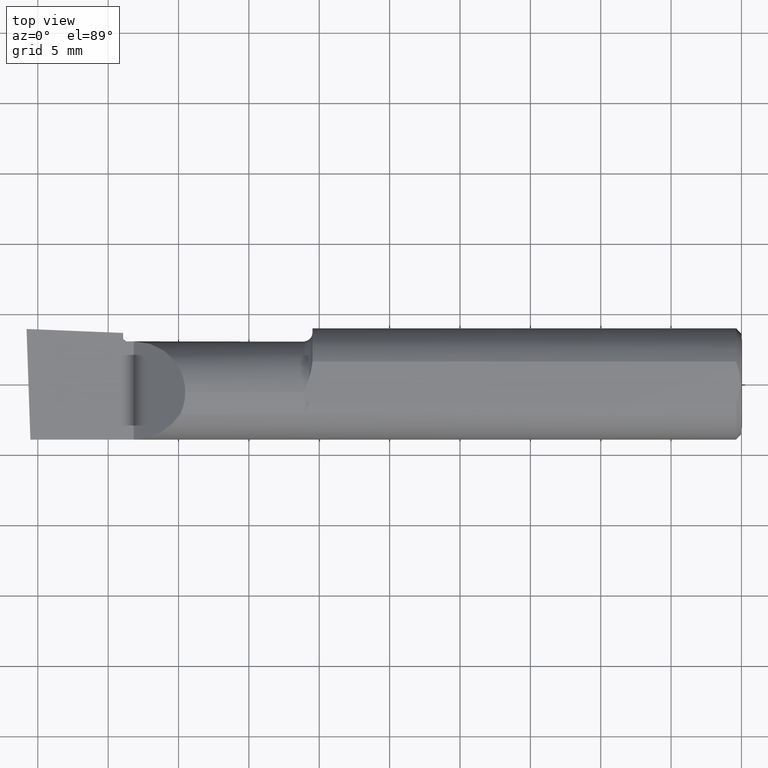
[diagram: clean part render]
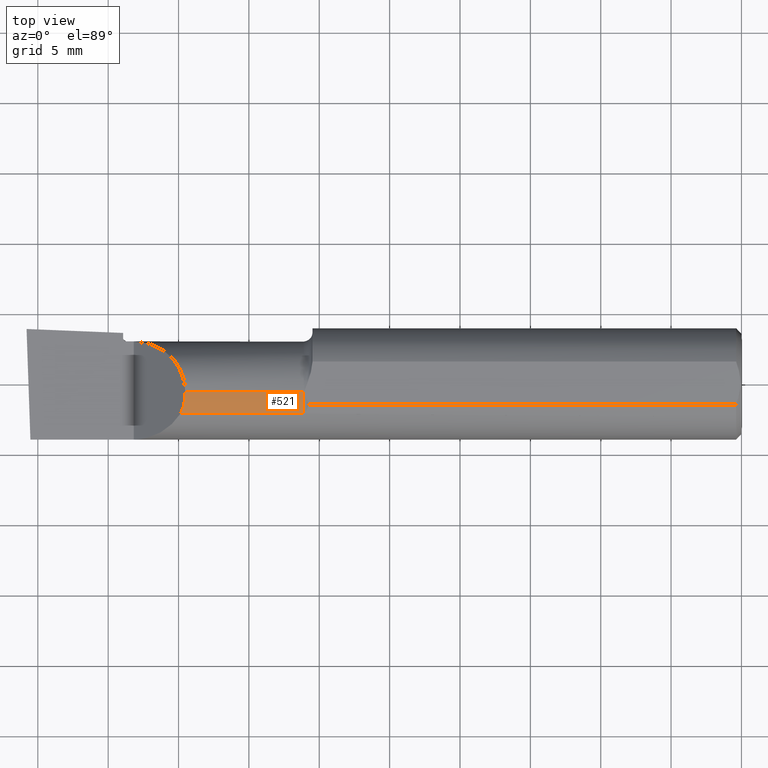
[diagram: same view with one face highlighted and labeled with its STEP entity id]
A machine part, top view. The second image highlights one B-rep face of the part: STEP entity #521.
In plain terms, the highlighted cylindrical surface (partial cylindrical patch) has radius 3.6551 mm, axis along (1, -0, -0).
Its self-contained STEP definition (entity closure, byte-faithful):
#39 = EDGE_CURVE ( 'NONE', #740, #435, #54, .T. ) ;
#54 = CIRCLE ( 'NONE', #476, 0.1439000000000000556 ) ;
#61 = DIRECTION ( 'NONE',  ( 0.000000000000000000, 0.000000000000000000, 1.000000000000000000 ) ) ;
#106 = CARTESIAN_POINT ( 'NONE',  ( -1.556100000000000483, -0.04605394310600444824, 0.1439000000000000001 ) ) ;
#153 = DIRECTION ( 'NONE',  ( -1.000000000000000000, 0.000000000000000000, 0.000000000000000000 ) ) ;
#179 = VECTOR ( 'NONE', #153, 39.37007874015748143 ) ;
#198 = CARTESIAN_POINT ( 'NONE',  ( -1.472499999999999698, -0.08569999999999981799, 0.1304711462354800622 ) ) ;
#224 = VECTOR ( 'NONE', #288, 39.37007874015748143 ) ;
#226 = CARTESIAN_POINT ( 'NONE',  ( -1.224999999999999867, -0.02500000000000000486, 0.000000000000000000 ) ) ;
#248 = AXIS2_PLACEMENT_3D ( 'NONE', #678, #735, #729 ) ;
#270 = EDGE_LOOP ( 'NONE', ( #406, #439, #391, #672 ) ) ;
#272 = VERTEX_POINT ( 'NONE', #547 ) ;
#288 = DIRECTION ( 'NONE',  ( 1.000000000000000000, -0.000000000000000000, -0.000000000000000000 ) ) ;
#292 = FACE_OUTER_BOUND ( 'NONE', #270, .T. ) ;
#328 = EDGE_CURVE ( 'NONE', #740, #272, #606, .T. ) ;
#332 = CARTESIAN_POINT ( 'NONE',  ( -1.560647864559970843, -0.06661082633900061722, 0.1393521354400298062 ) ) ;
#347 =( BOUNDED_CURVE ( )  B_SPLINE_CURVE ( 3, ( #514, #106, #332, #401 ),
 .UNSPECIFIED., .F., .F. ) 
 B_SPLINE_CURVE_WITH_KNOTS ( ( 4, 4 ),
 ( 0.000000000000000000, 0.4354524910905175905 ),
 .UNSPECIFIED. ) 
 CURVE ( )  GEOMETRIC_REPRESENTATION_ITEM ( )  RATIONAL_B_SPLINE_CURVE ( ( 1.000000000000000000, 0.9842607512044772022, 0.9842607512044772022, 1.000000000000000000 ) ) 
 REPRESENTATION_ITEM ( '' )  );
#368 = CARTESIAN_POINT ( 'NONE',  ( -1.224999999999999867, -0.08569999999999945717, 0.1304711462354803397 ) ) ;
#391 = ORIENTED_EDGE ( 'NONE', *, *, #328, .F. ) ;
#399 = LINE ( 'NONE', #575, #224 ) ;
#401 = CARTESIAN_POINT ( 'NONE',  ( -1.569528853764517340, -0.08569999999999478035, 0.1304711462354828655 ) ) ;
#404 = CARTESIAN_POINT ( 'NONE',  ( -1.224999999999999867, -0.02500000000000000486, 0.1439000000000000556 ) ) ;
#406 = ORIENTED_EDGE ( 'NONE', *, *, #480, .F. ) ;
#435 = VERTEX_POINT ( 'NONE', #404 ) ;
#439 = ORIENTED_EDGE ( 'NONE', *, *, #499, .T. ) ;
#476 = AXIS2_PLACEMENT_3D ( 'NONE', #226, #568, #61 ) ;
#480 = EDGE_CURVE ( 'NONE', #561, #435, #399, .T. ) ;
#499 = EDGE_CURVE ( 'NONE', #561, #272, #347, .T. ) ;
#514 = CARTESIAN_POINT ( 'NONE',  ( -1.556100000000000483, -0.02500000000000000486, 0.1439000000000000001 ) ) ;
#519 = CYLINDRICAL_SURFACE ( 'NONE', #248, 0.1439000000000000001 ) ;
#521 = ADVANCED_FACE ( 'NONE', ( #292 ), #519, .T. ) ;
#547 = CARTESIAN_POINT ( 'NONE',  ( -1.569528853764517340, -0.08569999999999478035, 0.1304711462354828655 ) ) ;
#561 = VERTEX_POINT ( 'NONE', #576 ) ;
#568 = DIRECTION ( 'NONE',  ( -1.000000000000000000, 0.000000000000000000, 0.000000000000000000 ) ) ;
#575 = CARTESIAN_POINT ( 'NONE',  ( 0.000000000000000000, -0.02500000000000000486, 0.1439000000000000001 ) ) ;
#576 = CARTESIAN_POINT ( 'NONE',  ( -1.556100000000000483, -0.02500000000000000486, 0.1439000000000000001 ) ) ;
#606 = LINE ( 'NONE', #198, #179 ) ;
#672 = ORIENTED_EDGE ( 'NONE', *, *, #39, .T. ) ;
#678 = CARTESIAN_POINT ( 'NONE',  ( 0.000000000000000000, -0.02500000000000000486, 0.000000000000000000 ) ) ;
#729 = DIRECTION ( 'NONE',  ( 0.000000000000000000, 0.000000000000000000, 1.000000000000000000 ) ) ;
#735 = DIRECTION ( 'NONE',  ( 1.000000000000000000, -0.000000000000000000, -0.000000000000000000 ) ) ;
#740 = VERTEX_POINT ( 'NONE', #368 ) ;